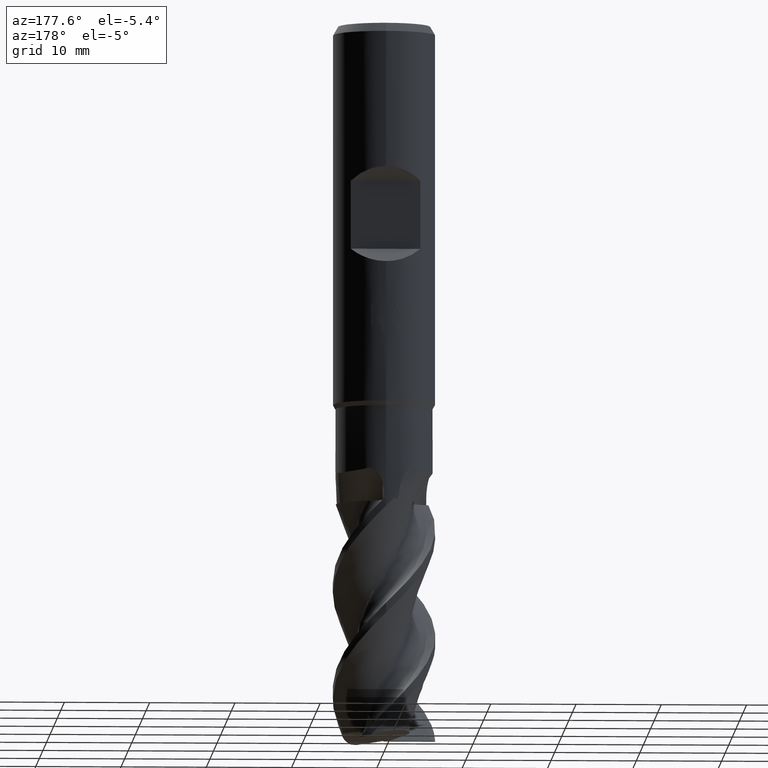
[diagram: clean part render]
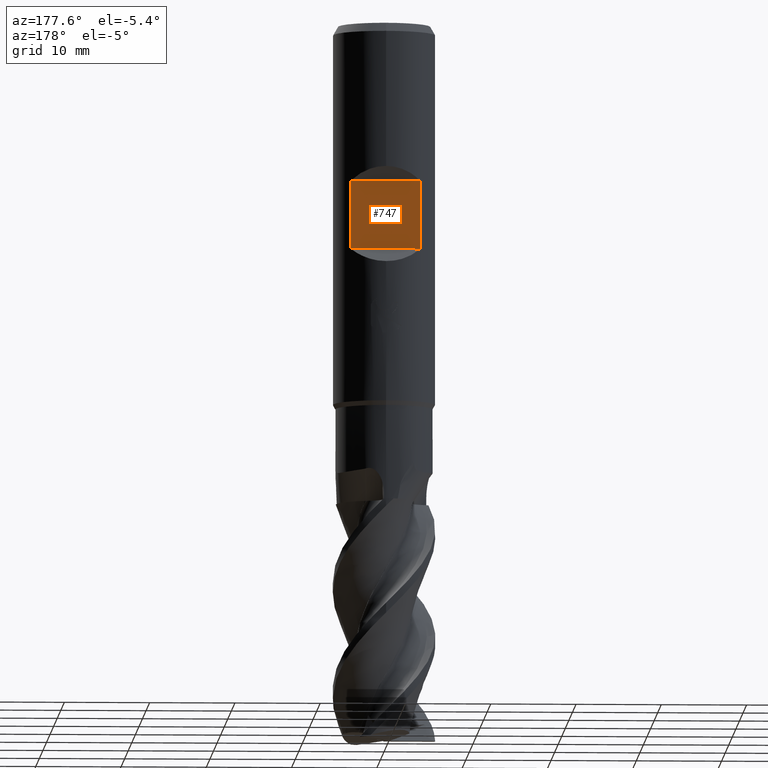
[diagram: same view with one face highlighted and labeled with its STEP entity id]
A machine part, auxiliary view. The second image highlights one B-rep face of the part: STEP entity #747.
In plain terms, the highlighted planar face has unit normal (0, -1, 0).
Its self-contained STEP definition (entity closure, byte-faithful):
#497=EDGE_CURVE('',#945,#771,#1367,.T.);
#585=EDGE_CURVE('',#967,#771,#1464,.T.);
#631=EDGE_CURVE('',#813,#945,#1514,.T.);
#747=ADVANCED_FACE('',(#1635),#1636,.F.);
#771=VERTEX_POINT('',#1662);
#813=VERTEX_POINT('',#1709);
#945=VERTEX_POINT('',#1852);
#967=VERTEX_POINT('',#1875);
#1285=EDGE_CURVE('',#967,#813,#2229,.T.);
#1367=LINE('',#3065,#3066);
#1464=LINE('',#3797,#3798);
#1514=LINE('',#4065,#4066);
#1635=FACE_OUTER_BOUND('',#4365,.T.);
#1636=PLANE('',#4366);
#1662=CARTESIAN_POINT('',(4.07921561087423,4.4,-18.5));
#1709=CARTESIAN_POINT('',(-4.07921561087423,4.4,-26.5));
#1852=CARTESIAN_POINT('',(4.07921561087423,4.4,-26.5));
#1875=CARTESIAN_POINT('',(-4.07921561087423,4.4,-18.5));
#2229=LINE('',#8522,#8523);
#3065=CARTESIAN_POINT('',(4.07921561087423,4.4,-22.5));
#3066=VECTOR('',#9296,1.0);
#3797=CARTESIAN_POINT('',(-6.0,4.4,-18.5));
#3798=VECTOR('',#9402,1.0);
#4065=CARTESIAN_POINT('',(-6.0,4.4,-26.5));
#4066=VECTOR('',#9458,1.0);
#4365=EDGE_LOOP('',(#9555,#9556,#9557,#9558));
#4366=AXIS2_PLACEMENT_3D('',#9559,#9560,#9561);
#8522=CARTESIAN_POINT('',(-4.07921561087423,4.4,-22.5));
#8523=VECTOR('',#10255,1.0);
#9296=DIRECTION('',(-0.0,-0.0,1.0));
#9402=DIRECTION('',(1.0,0.0,0.0));
#9458=DIRECTION('',(1.0,0.0,0.0));
#9555=ORIENTED_EDGE('',*,*,#497,.F.);
#9556=ORIENTED_EDGE('',*,*,#631,.F.);
#9557=ORIENTED_EDGE('',*,*,#1285,.F.);
#9558=ORIENTED_EDGE('',*,*,#585,.T.);
#9559=CARTESIAN_POINT('',(-6.0,4.4,-26.5));
#9560=DIRECTION('',(0.0,-1.0,0.0));
#9561=DIRECTION('',(0.0,0.0,-1.0));
#10255=DIRECTION('',(0.0,0.0,-1.0));